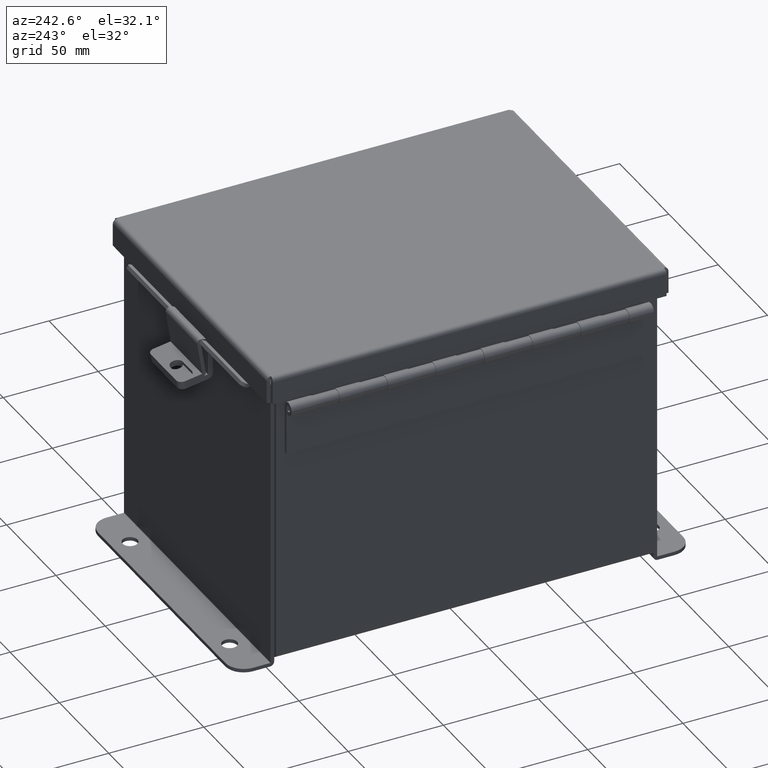
[diagram: clean part render]
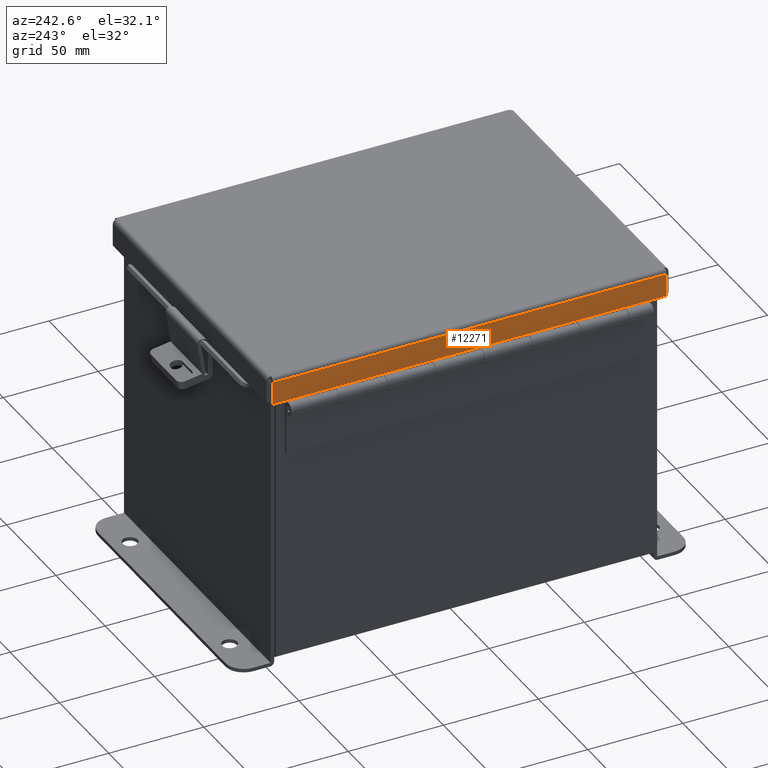
[diagram: same view with one face highlighted and labeled with its STEP entity id]
A machine part, auxiliary view. The second image highlights one B-rep face of the part: STEP entity #12271.
In plain terms, the highlighted planar face has unit normal (1, -0, 0).
Its self-contained STEP definition (entity closure, byte-faithful):
#58 = VECTOR ( 'NONE', #2392, 39.37007874015748100 ) ;
#120 = VERTEX_POINT ( 'NONE', #13318 ) ;
#663 = ORIENTED_EDGE ( 'NONE', *, *, #2417, .T. ) ;
#2128 = DIRECTION ( 'NONE',  ( -1.000000000000000000, 0.0000000000000000000, 3.363654414526078100E-015 ) ) ;
#2180 = DIRECTION ( 'NONE',  ( 3.363654414526078100E-015, 0.0000000000000000000, 1.000000000000000000 ) ) ;
#2392 = DIRECTION ( 'NONE',  ( 0.0000000000000000000, -1.000000000000000000, 0.0000000000000000000 ) ) ;
#2417 = EDGE_CURVE ( 'NONE', #13440, #13760, #9522, .T. ) ;
#2453 = CARTESIAN_POINT ( 'NONE',  ( 3.156250000000000900, 4.074478932188137400, -1.087734790185952100E-014 ) ) ;
#2931 = CARTESIAN_POINT ( 'NONE',  ( 3.156250000000000900, -4.156249999999998200, 0.01299999999999986400 ) ) ;
#2958 = CARTESIAN_POINT ( 'NONE',  ( 3.156250000000000900, 4.074478932188137400, 0.01299999999999986400 ) ) ;
#3138 = CARTESIAN_POINT ( 'NONE',  ( 3.156250000000002700, 4.074478932188137400, 0.4872999999999997300 ) ) ;
#3626 = LINE ( 'NONE', #2453, #6403 ) ;
#3704 = EDGE_CURVE ( 'NONE', #9539, #120, #15184, .T. ) ;
#4156 = VECTOR ( 'NONE', #13206, 39.37007874015748100 ) ;
#4356 = FACE_OUTER_BOUND ( 'NONE', #11734, .T. ) ;
#4779 = AXIS2_PLACEMENT_3D ( 'NONE', #15173, #2128, #2180 ) ;
#4949 = ORIENTED_EDGE ( 'NONE', *, *, #3704, .F. ) ;
#6403 = VECTOR ( 'NONE', #13083, 39.37007874015748100 ) ;
#7320 = LINE ( 'NONE', #9576, #4156 ) ;
#8401 = CARTESIAN_POINT ( 'NONE',  ( 3.156250000000002700, -4.074478932188133800, 0.4872999999999997300 ) ) ;
#9288 = PLANE ( 'NONE',  #4779 ) ;
#9522 = LINE ( 'NONE', #14170, #58 ) ;
#9539 = VERTEX_POINT ( 'NONE', #2958 ) ;
#9576 = CARTESIAN_POINT ( 'NONE',  ( 3.156250000000000900, -4.074478932188133800, -2.512649847650986200E-016 ) ) ;
#10019 = DIRECTION ( 'NONE',  ( -0.0000000000000000000, -1.000000000000000000, -0.0000000000000000000 ) ) ;
#10244 = ORIENTED_EDGE ( 'NONE', *, *, #11779, .T. ) ;
#11734 = EDGE_LOOP ( 'NONE', ( #4949, #10244, #663, #14849 ) ) ;
#11779 = EDGE_CURVE ( 'NONE', #9539, #13440, #3626, .T. ) ;
#12271 = ADVANCED_FACE ( 'NONE', ( #4356 ), #9288, .F. ) ;
#12479 = EDGE_CURVE ( 'NONE', #120, #13760, #7320, .T. ) ;
#13083 = DIRECTION ( 'NONE',  ( 3.363654414526078900E-015, 0.0000000000000000000, 1.000000000000000000 ) ) ;
#13206 = DIRECTION ( 'NONE',  ( 3.363654414526078900E-015, -0.0000000000000000000, 1.000000000000000000 ) ) ;
#13318 = CARTESIAN_POINT ( 'NONE',  ( 3.156250000000000900, -4.074478932188133000, 0.01299999999999985900 ) ) ;
#13440 = VERTEX_POINT ( 'NONE', #3138 ) ;
#13760 = VERTEX_POINT ( 'NONE', #8401 ) ;
#14170 = CARTESIAN_POINT ( 'NONE',  ( 3.156250000000002700, -9.819863825646696400E-018, 0.4872999999999997300 ) ) ;
#14798 = VECTOR ( 'NONE', #10019, 39.37007874015748100 ) ;
#14849 = ORIENTED_EDGE ( 'NONE', *, *, #12479, .F. ) ;
#15173 = CARTESIAN_POINT ( 'NONE',  ( 3.156250000000000900, -9.819863825646696400E-018, -1.087734790185952100E-014 ) ) ;
#15184 = LINE ( 'NONE', #2931, #14798 ) ;